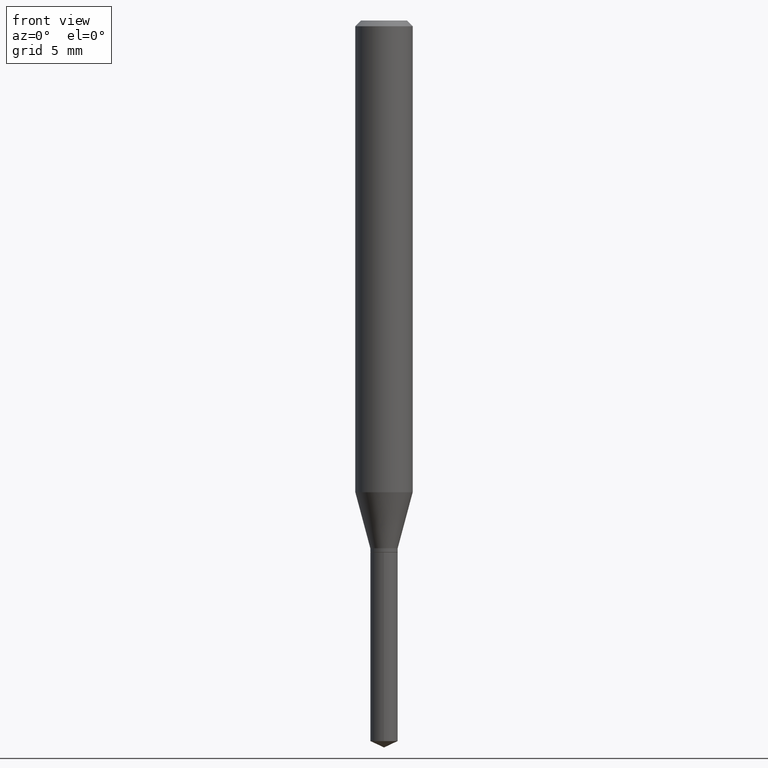
[diagram: clean part render]
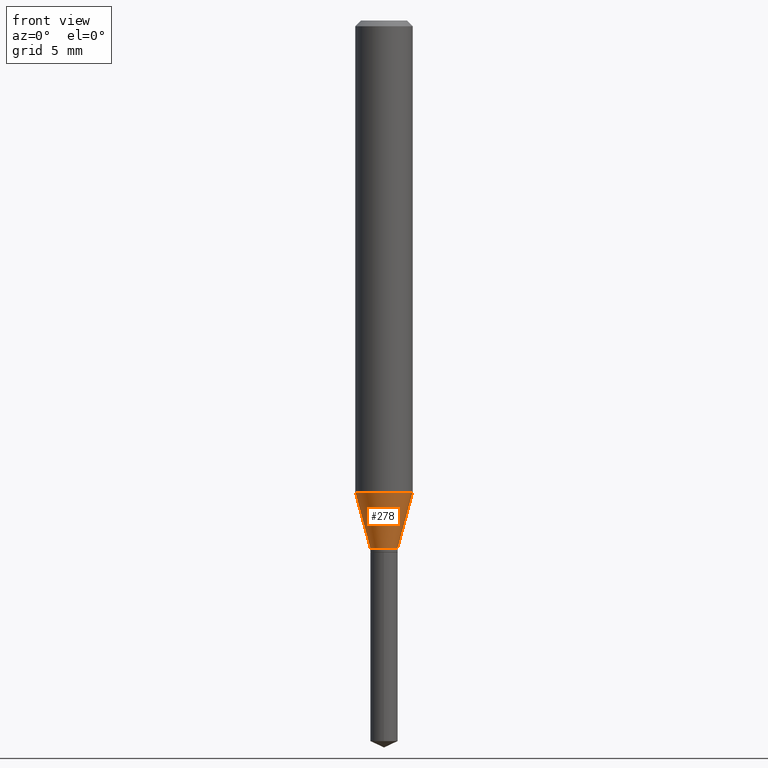
[diagram: same view with one face highlighted and labeled with its STEP entity id]
A machine part, front view. The second image highlights one B-rep face of the part: STEP entity #278.
In plain terms, the highlighted conical surface has half-angle 15 deg.
Its self-contained STEP definition (entity closure, byte-faithful):
#1 = FACE_OUTER_BOUND ( 'NONE', #385, .T. ) ;
#28 = CONICAL_SURFACE ( 'NONE', #448, 0.02815000000000000141, 0.2617993877991500740 ) ;
#31 = CARTESIAN_POINT ( 'NONE',  ( 0.02815000000000000141, -3.988668281494408337E-15, -1.086099999999999843 ) ) ;
#33 = DIRECTION ( 'NONE',  ( 0.2588190451025213501, 1.565188264969621968E-15, 0.9659258262890682012 ) ) ;
#38 = EDGE_CURVE ( 'NONE', #343, #150, #285, .T. ) ;
#55 = VERTEX_POINT ( 'NONE', #432 ) ;
#69 = CIRCLE ( 'NONE', #414, 0.02815000000000000141 ) ;
#82 = ORIENTED_EDGE ( 'NONE', *, *, #38, .F. ) ;
#85 = CARTESIAN_POINT ( 'NONE',  ( 2.656023670397676877E-29, -3.792097882117539936E-15, -1.086099999999999843 ) ) ;
#103 = DIRECTION ( 'NONE',  ( 1.000000000000000000, -6.982962677686265133E-15, 0.000000000000000000 ) ) ;
#119 = EDGE_CURVE ( 'NONE', #55, #468, #444, .T. ) ;
#126 = CARTESIAN_POINT ( 'NONE',  ( -0.02815000000000000141, -3.592080102001071674E-15, -1.086099999999999843 ) ) ;
#135 = CARTESIAN_POINT ( 'NONE',  ( 2.656023670397676877E-29, -3.792097882117539936E-15, -1.086099999999999843 ) ) ;
#149 = DIRECTION ( 'NONE',  ( -2.445468806185136597E-29, 3.491481338843145583E-15, 1.000000000000000000 ) ) ;
#150 = VERTEX_POINT ( 'NONE', #407 ) ;
#188 = CARTESIAN_POINT ( 'NONE',  ( 2.374011302957737250E-29, -3.389458962435085669E-15, -0.9707796300461214445 ) ) ;
#192 = DIRECTION ( 'NONE',  ( 1.000000000000000000, -6.982962677686265133E-15, 0.000000000000000000 ) ) ;
#220 = EDGE_CURVE ( 'NONE', #343, #55, #69, .T. ) ;
#269 = VECTOR ( 'NONE', #291, 39.37007874015747433 ) ;
#278 = ADVANCED_FACE ( 'NONE', ( #1 ), #28, .T. ) ;
#285 = LINE ( 'NONE', #126, #269 ) ;
#288 = AXIS2_PLACEMENT_3D ( 'NONE', #188, #149, #303 ) ;
#291 = DIRECTION ( 'NONE',  ( -0.2588190451025213501, 5.211531920934551042E-15, 0.9659258262890682012 ) ) ;
#293 = DIRECTION ( 'NONE',  ( -2.445468806185136597E-29, 3.491481338843145583E-15, 1.000000000000000000 ) ) ;
#303 = DIRECTION ( 'NONE',  ( 1.000000000000000000, -6.982962677686266711E-15, 0.000000000000000000 ) ) ;
#311 = ORIENTED_EDGE ( 'NONE', *, *, #119, .T. ) ;
#343 = VERTEX_POINT ( 'NONE', #347 ) ;
#345 = DIRECTION ( 'NONE',  ( -2.445468806185136597E-29, 3.491481338843145583E-15, 1.000000000000000000 ) ) ;
#347 = CARTESIAN_POINT ( 'NONE',  ( -0.02815000000000000141, -3.605871453289501947E-15, -1.086099999999999843 ) ) ;
#369 = EDGE_CURVE ( 'NONE', #150, #468, #416, .T. ) ;
#385 = EDGE_LOOP ( 'NONE', ( #82, #399, #311, #422 ) ) ;
#399 = ORIENTED_EDGE ( 'NONE', *, *, #220, .T. ) ;
#405 = VECTOR ( 'NONE', #33, 39.37007874015747433 ) ;
#407 = CARTESIAN_POINT ( 'NONE',  ( -0.05905000000000011628, -2.969883476968745782E-15, -0.9707796300461214445 ) ) ;
#414 = AXIS2_PLACEMENT_3D ( 'NONE', #135, #293, #103 ) ;
#416 = CIRCLE ( 'NONE', #288, 0.05905000000000011628 ) ;
#422 = ORIENTED_EDGE ( 'NONE', *, *, #369, .F. ) ;
#432 = CARTESIAN_POINT ( 'NONE',  ( 0.02815000000000000141, -3.988668281494408337E-15, -1.086099999999999843 ) ) ;
#444 = LINE ( 'NONE', #31, #405 ) ;
#448 = AXIS2_PLACEMENT_3D ( 'NONE', #85, #345, #192 ) ;
#468 = VERTEX_POINT ( 'NONE', #479 ) ;
#479 = CARTESIAN_POINT ( 'NONE',  ( 0.05905000000000011628, -3.801802908552460589E-15, -0.9707796300461214445 ) ) ;